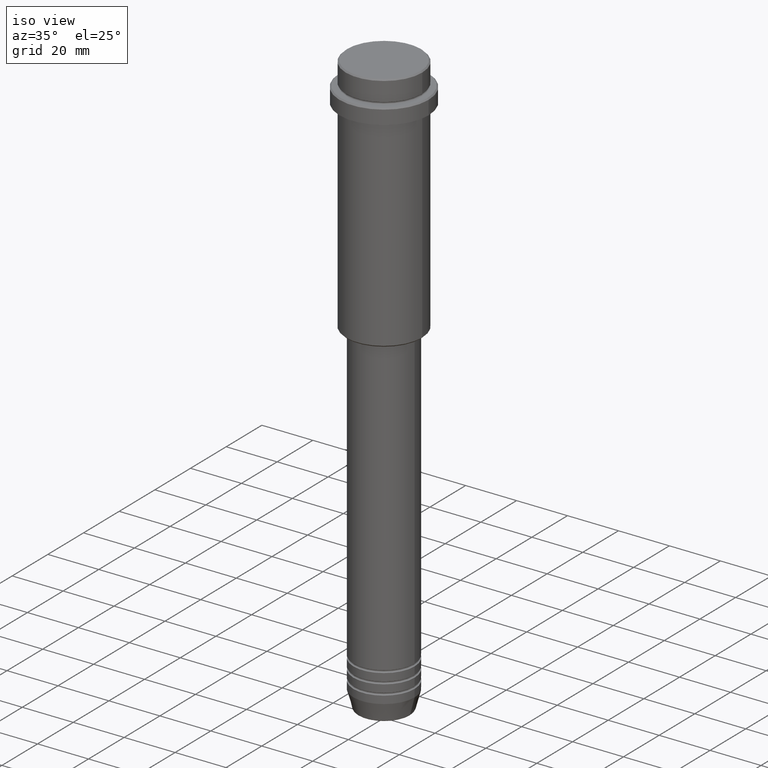
[diagram: clean part render]
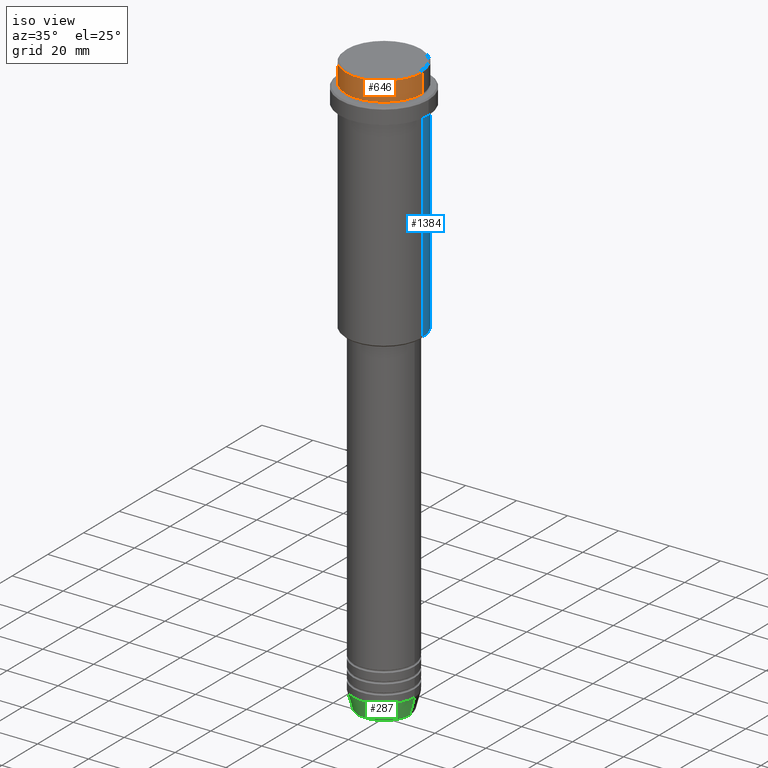
[diagram: same view with three faces highlighted in distinct colors, each labeled with its STEP entity id]
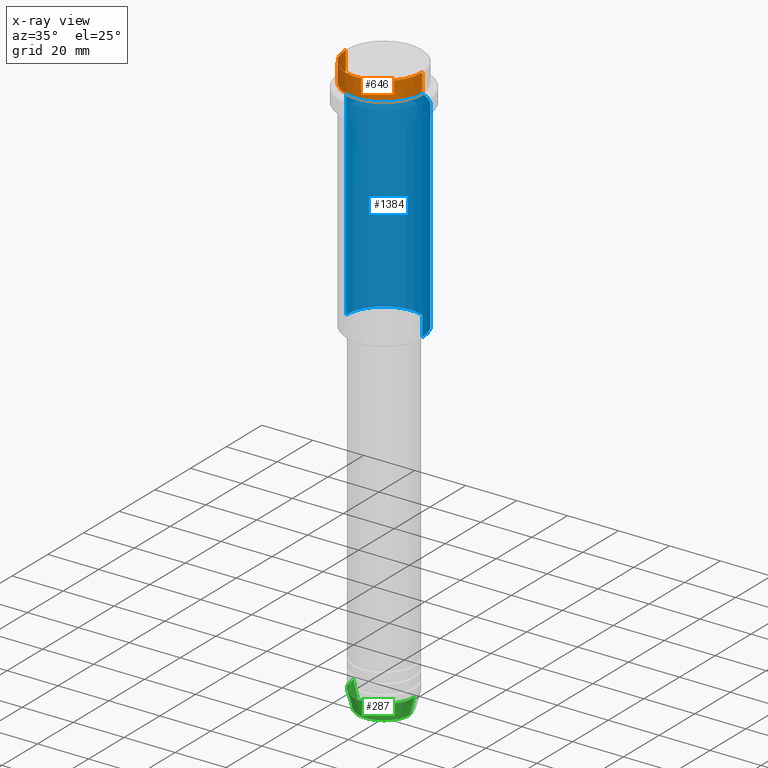
[diagram: x-ray of the same camera — body ghosted, the three highlighted faces saturated]
A machine part, iso view with three faces highlighted in distinct colors.
The next image is the same camera in x-ray (body ghosted, the three faces saturated) — at least one of them is partly hidden behind the body in this view.
Their STEP definitions:

[orange] entity #646 — the highlighted cylindrical surface (partial cylindrical patch) has radius 15 mm, axis along (-0, -0, 1).
#21 = VERTEX_POINT ( 'NONE', #312 ) ;
#38 = CIRCLE ( 'NONE', #586, 15.00000000000000000 ) ;
#119 = ORIENTED_EDGE ( 'NONE', *, *, #1107, .T. ) ;
#169 = VECTOR ( 'NONE', #1011, 1000.000000000000000 ) ;
#216 = LINE ( 'NONE', #887, #169 ) ;
#312 = CARTESIAN_POINT ( 'NONE',  ( -15.00000000000000000, 1.836970198721029589E-15, -0.4999999999999831246 ) ) ;
#330 = DIRECTION ( 'NONE',  ( 1.000000000000000000, 0.000000000000000000, 0.000000000000000000 ) ) ;
#337 = CARTESIAN_POINT ( 'NONE',  ( 15.00000000000000000, 0.000000000000000000, 0.000000000000000000 ) ) ;
#342 = DIRECTION ( 'NONE',  ( -0.000000000000000000, -0.000000000000000000, 1.000000000000000000 ) ) ;
#390 = CARTESIAN_POINT ( 'NONE',  ( 15.00000000000000000, 0.000000000000000000, -0.4999999999999831246 ) ) ;
#429 = EDGE_CURVE ( 'NONE', #808, #1080, #463, .T. ) ;
#463 = LINE ( 'NONE', #337, #976 ) ;
#488 = CARTESIAN_POINT ( 'NONE',  ( 0.000000000000000000, 0.000000000000000000, -7.999999999999998224 ) ) ;
#519 = CARTESIAN_POINT ( 'NONE',  ( -15.00000000000000000, 1.836970198721029589E-15, -7.999999999999998224 ) ) ;
#566 = CIRCLE ( 'NONE', #1364, 15.00000000000000000 ) ;
#586 = AXIS2_PLACEMENT_3D ( 'NONE', #488, #719, #1159 ) ;
#641 = DIRECTION ( 'NONE',  ( 0.000000000000000000, 0.000000000000000000, -1.000000000000000000 ) ) ;
#646 = ADVANCED_FACE ( 'NONE', ( #1241 ), #715, .T. ) ;
#715 = CYLINDRICAL_SURFACE ( 'NONE', #860, 15.00000000000000000 ) ;
#719 = DIRECTION ( 'NONE',  ( -0.000000000000000000, -0.000000000000000000, 1.000000000000000000 ) ) ;
#755 = VERTEX_POINT ( 'NONE', #519 ) ;
#761 = ORIENTED_EDGE ( 'NONE', *, *, #951, .F. ) ;
#808 = VERTEX_POINT ( 'NONE', #1297 ) ;
#860 = AXIS2_PLACEMENT_3D ( 'NONE', #914, #1357, #1367 ) ;
#887 = CARTESIAN_POINT ( 'NONE',  ( -15.00000000000000000, 1.836970198721029589E-15, 0.000000000000000000 ) ) ;
#891 = CARTESIAN_POINT ( 'NONE',  ( 0.000000000000000000, 0.000000000000000000, -0.4999999999999831246 ) ) ;
#914 = CARTESIAN_POINT ( 'NONE',  ( 0.000000000000000000, 0.000000000000000000, 0.000000000000000000 ) ) ;
#951 = EDGE_CURVE ( 'NONE', #755, #21, #216, .T. ) ;
#976 = VECTOR ( 'NONE', #342, 1000.000000000000000 ) ;
#1011 = DIRECTION ( 'NONE',  ( -0.000000000000000000, -0.000000000000000000, 1.000000000000000000 ) ) ;
#1036 = ORIENTED_EDGE ( 'NONE', *, *, #1398, .T. ) ;
#1080 = VERTEX_POINT ( 'NONE', #390 ) ;
#1107 = EDGE_CURVE ( 'NONE', #755, #808, #38, .T. ) ;
#1159 = DIRECTION ( 'NONE',  ( 1.000000000000000000, 0.000000000000000000, 0.000000000000000000 ) ) ;
#1215 = EDGE_LOOP ( 'NONE', ( #761, #119, #1268, #1036 ) ) ;
#1241 = FACE_OUTER_BOUND ( 'NONE', #1215, .T. ) ;
#1268 = ORIENTED_EDGE ( 'NONE', *, *, #429, .T. ) ;
#1297 = CARTESIAN_POINT ( 'NONE',  ( 15.00000000000000000, 0.000000000000000000, -7.999999999999998224 ) ) ;
#1357 = DIRECTION ( 'NONE',  ( -0.000000000000000000, -0.000000000000000000, 1.000000000000000000 ) ) ;
#1364 = AXIS2_PLACEMENT_3D ( 'NONE', #891, #641, #330 ) ;
#1367 = DIRECTION ( 'NONE',  ( 1.000000000000000000, 0.000000000000000000, 0.000000000000000000 ) ) ;
#1398 = EDGE_CURVE ( 'NONE', #1080, #21, #566, .T. ) ;

[blue] entity #1384 — the highlighted cylindrical surface (partial cylindrical patch) has radius 15 mm, axis along (-0, -0, 1).
#16 = EDGE_CURVE ( 'NONE', #427, #143, #1269, .T. ) ;
#42 = ORIENTED_EDGE ( 'NONE', *, *, #1404, .F. ) ;
#108 = CARTESIAN_POINT ( 'NONE',  ( 15.00000000000000000, 0.000000000000000000, 0.000000000000000000 ) ) ;
#110 = ORIENTED_EDGE ( 'NONE', *, *, #122, .T. ) ;
#122 = EDGE_CURVE ( 'NONE', #824, #965, #142, .T. ) ;
#142 = CIRCLE ( 'NONE', #952, 15.00000000000000000 ) ;
#143 = VERTEX_POINT ( 'NONE', #1016 ) ;
#205 = CARTESIAN_POINT ( 'NONE',  ( -15.00000000000000000, 1.836970198721029589E-15, 0.000000000000000000 ) ) ;
#209 = CARTESIAN_POINT ( 'NONE',  ( 0.000000000000000000, 0.000000000000000000, -16.00000000000000000 ) ) ;
#227 = CYLINDRICAL_SURFACE ( 'NONE', #335, 15.00000000000000000 ) ;
#335 = AXIS2_PLACEMENT_3D ( 'NONE', #351, #1311, #338 ) ;
#338 = DIRECTION ( 'NONE',  ( 1.000000000000000000, 0.000000000000000000, 0.000000000000000000 ) ) ;
#351 = CARTESIAN_POINT ( 'NONE',  ( 0.000000000000000000, 0.000000000000000000, 0.000000000000000000 ) ) ;
#412 = CARTESIAN_POINT ( 'NONE',  ( 15.00000000000000000, 0.000000000000000000, -94.49999999999992895 ) ) ;
#427 = VERTEX_POINT ( 'NONE', #1218 ) ;
#465 = FACE_OUTER_BOUND ( 'NONE', #1160, .T. ) ;
#819 = EDGE_CURVE ( 'NONE', #965, #143, #983, .T. ) ;
#824 = VERTEX_POINT ( 'NONE', #412 ) ;
#864 = VECTOR ( 'NONE', #1089, 1000.000000000000000 ) ;
#879 = AXIS2_PLACEMENT_3D ( 'NONE', #209, #1198, #886 ) ;
#886 = DIRECTION ( 'NONE',  ( 1.000000000000000000, 0.000000000000000000, 0.000000000000000000 ) ) ;
#892 = DIRECTION ( 'NONE',  ( -1.000000000000000000, 0.000000000000000000, 0.000000000000000000 ) ) ;
#952 = AXIS2_PLACEMENT_3D ( 'NONE', #1250, #1353, #892 ) ;
#965 = VERTEX_POINT ( 'NONE', #1201 ) ;
#973 = ORIENTED_EDGE ( 'NONE', *, *, #16, .F. ) ;
#983 = LINE ( 'NONE', #205, #1051 ) ;
#993 = LINE ( 'NONE', #108, #864 ) ;
#1016 = CARTESIAN_POINT ( 'NONE',  ( -15.00000000000000355, 1.836970198721029983E-15, -16.00000000000000000 ) ) ;
#1051 = VECTOR ( 'NONE', #1087, 1000.000000000000000 ) ;
#1082 = ORIENTED_EDGE ( 'NONE', *, *, #819, .T. ) ;
#1087 = DIRECTION ( 'NONE',  ( -0.000000000000000000, -0.000000000000000000, 1.000000000000000000 ) ) ;
#1089 = DIRECTION ( 'NONE',  ( -0.000000000000000000, -0.000000000000000000, 1.000000000000000000 ) ) ;
#1160 = EDGE_LOOP ( 'NONE', ( #110, #1082, #973, #42 ) ) ;
#1198 = DIRECTION ( 'NONE',  ( -0.000000000000000000, -0.000000000000000000, 1.000000000000000000 ) ) ;
#1201 = CARTESIAN_POINT ( 'NONE',  ( -15.00000000000000000, 1.836970198721029589E-15, -94.49999999999992895 ) ) ;
#1218 = CARTESIAN_POINT ( 'NONE',  ( 15.00000000000000178, 0.000000000000000000, -16.00000000000000000 ) ) ;
#1250 = CARTESIAN_POINT ( 'NONE',  ( 0.000000000000000000, 0.000000000000000000, -94.49999999999992895 ) ) ;
#1269 = CIRCLE ( 'NONE', #879, 15.00000000000000178 ) ;
#1311 = DIRECTION ( 'NONE',  ( -0.000000000000000000, -0.000000000000000000, 1.000000000000000000 ) ) ;
#1353 = DIRECTION ( 'NONE',  ( -0.000000000000000000, -0.000000000000000000, 1.000000000000000000 ) ) ;
#1384 = ADVANCED_FACE ( 'NONE', ( #465 ), #227, .T. ) ;
#1404 = EDGE_CURVE ( 'NONE', #824, #427, #993, .T. ) ;

[green] entity #287 — the highlighted conical surface has half-angle 15 deg.
#25 = DIRECTION ( 'NONE',  ( -0.2588190451025213501, 3.169619151431772337E-17, 0.9659258262890680902 ) ) ;
#34 = CONICAL_SURFACE ( 'NONE', #1093, 12.00000000000000000, 0.2617993877991500740 ) ;
#46 = VERTEX_POINT ( 'NONE', #666 ) ;
#61 = DIRECTION ( 'NONE',  ( 1.000000000000000000, 0.000000000000000000, 0.000000000000000000 ) ) ;
#62 = VERTEX_POINT ( 'NONE', #453 ) ;
#85 = LINE ( 'NONE', #409, #626 ) ;
#116 = ORIENTED_EDGE ( 'NONE', *, *, #183, .F. ) ;
#132 = LINE ( 'NONE', #481, #1271 ) ;
#183 = EDGE_CURVE ( 'NONE', #62, #1061, #132, .T. ) ;
#190 = ORIENTED_EDGE ( 'NONE', *, *, #1224, .T. ) ;
#231 = VERTEX_POINT ( 'NONE', #1147 ) ;
#250 = ORIENTED_EDGE ( 'NONE', *, *, #1405, .F. ) ;
#287 = ADVANCED_FACE ( 'NONE', ( #1047 ), #34, .T. ) ;
#395 = DIRECTION ( 'NONE',  ( 1.000000000000000000, 0.000000000000000000, 0.000000000000000000 ) ) ;
#409 = CARTESIAN_POINT ( 'NONE',  ( 12.00000000000000000, 0.000000000000000000, -222.9999999999999716 ) ) ;
#452 = CARTESIAN_POINT ( 'NONE',  ( 0.000000000000000000, 0.000000000000000000, -222.9999999999999716 ) ) ;
#453 = CARTESIAN_POINT ( 'NONE',  ( -10.22365507213719127, 1.360806402472382744E-15, -229.6294095225512422 ) ) ;
#481 = CARTESIAN_POINT ( 'NONE',  ( -12.00000000000000000, 1.469576158976823947E-15, -222.9999999999999716 ) ) ;
#509 = DIRECTION ( 'NONE',  ( -0.000000000000000000, -0.000000000000000000, 1.000000000000000000 ) ) ;
#533 = DIRECTION ( 'NONE',  ( 0.2588190451025213501, 0.000000000000000000, 0.9659258262890680902 ) ) ;
#626 = VECTOR ( 'NONE', #533, 1000.000000000000000 ) ;
#666 = CARTESIAN_POINT ( 'NONE',  ( 12.00000000000000000, 0.000000000000000000, -222.9999999999999716 ) ) ;
#713 = CARTESIAN_POINT ( 'NONE',  ( -12.00000000000000000, 1.469576158976823947E-15, -222.9999999999999716 ) ) ;
#733 = CARTESIAN_POINT ( 'NONE',  ( 0.000000000000000000, 0.000000000000000000, -222.9999999999999716 ) ) ;
#745 = CIRCLE ( 'NONE', #1073, 10.22365507213719127 ) ;
#794 = CIRCLE ( 'NONE', #1004, 12.00000000000000000 ) ;
#981 = DIRECTION ( 'NONE',  ( -0.000000000000000000, -0.000000000000000000, 1.000000000000000000 ) ) ;
#990 = EDGE_CURVE ( 'NONE', #62, #231, #745, .T. ) ;
#1004 = AXIS2_PLACEMENT_3D ( 'NONE', #452, #981, #1416 ) ;
#1047 = FACE_OUTER_BOUND ( 'NONE', #1291, .T. ) ;
#1061 = VERTEX_POINT ( 'NONE', #713 ) ;
#1073 = AXIS2_PLACEMENT_3D ( 'NONE', #1252, #1371, #61 ) ;
#1093 = AXIS2_PLACEMENT_3D ( 'NONE', #733, #509, #395 ) ;
#1111 = ORIENTED_EDGE ( 'NONE', *, *, #990, .T. ) ;
#1147 = CARTESIAN_POINT ( 'NONE',  ( 10.22365507213719127, 0.000000000000000000, -229.6294095225512422 ) ) ;
#1224 = EDGE_CURVE ( 'NONE', #231, #46, #85, .T. ) ;
#1252 = CARTESIAN_POINT ( 'NONE',  ( 0.000000000000000000, 0.000000000000000000, -229.6294095225512422 ) ) ;
#1271 = VECTOR ( 'NONE', #25, 1000.000000000000000 ) ;
#1291 = EDGE_LOOP ( 'NONE', ( #116, #1111, #190, #250 ) ) ;
#1371 = DIRECTION ( 'NONE',  ( -0.000000000000000000, -0.000000000000000000, 1.000000000000000000 ) ) ;
#1405 = EDGE_CURVE ( 'NONE', #1061, #46, #794, .T. ) ;
#1416 = DIRECTION ( 'NONE',  ( 1.000000000000000000, 0.000000000000000000, 0.000000000000000000 ) ) ;